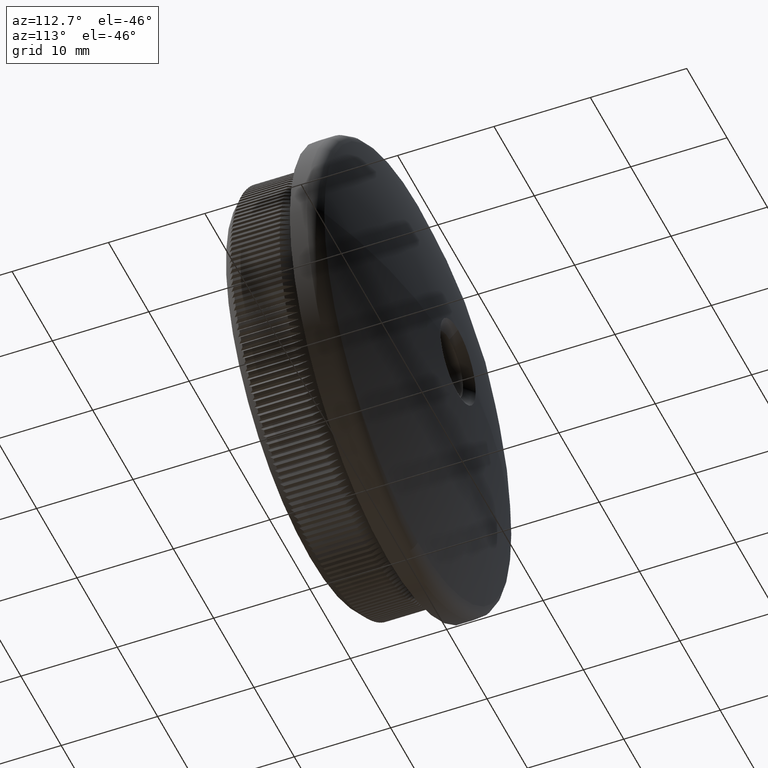
[diagram: clean part render]
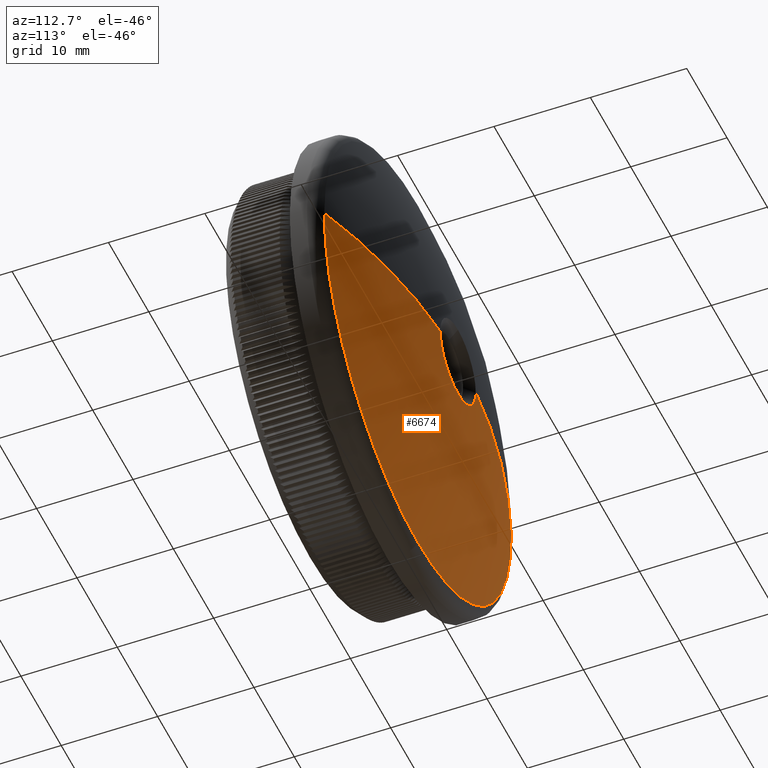
[diagram: same view with one face highlighted and labeled with its STEP entity id]
A machine part, auxiliary view. The second image highlights one B-rep face of the part: STEP entity #6674.
In plain terms, the highlighted spherical surface has radius 64.3949 mm.
Its self-contained STEP definition (entity closure, byte-faithful):
#907 = ORIENTED_EDGE ( 'NONE', *, *, #3846, .T. ) ;
#1370 = VERTEX_POINT ( 'NONE', #22908 ) ;
#1979 = CIRCLE ( 'NONE', #30591, 23.19018648117216600 ) ;
#2554 = CARTESIAN_POINT ( 'NONE',  ( 23.19018648117216600, 11.17937736945556400, 0.0000000000000000000 ) ) ;
#2848 = VERTEX_POINT ( 'NONE', #4248 ) ;
#2951 = CIRCLE ( 'NONE', #10354, 23.19018648117216600 ) ;
#2982 = AXIS2_PLACEMENT_3D ( 'NONE', #12285, #29733, #17414 ) ;
#3347 = EDGE_CURVE ( 'NONE', #9714, #31214, #1979, .T. ) ;
#3399 = EDGE_CURVE ( 'NONE', #2848, #23009, #21838, .T. ) ;
#3846 = EDGE_CURVE ( 'NONE', #17264, #1370, #25765, .T. ) ;
#4115 = ORIENTED_EDGE ( 'NONE', *, *, #3347, .T. ) ;
#4232 = DIRECTION ( 'NONE',  ( -0.0000000000000000000, -1.000000000000000000, -0.0000000000000000000 ) ) ;
#4248 = CARTESIAN_POINT ( 'NONE',  ( -4.390565330205774300, 15.35014724972939800, 1.688833971194079000E-015 ) ) ;
#4332 = CARTESIAN_POINT ( 'NONE',  ( 0.0000000000000000000, 11.17937736945556700, 0.0000000000000000000 ) ) ;
#6634 = CARTESIAN_POINT ( 'NONE',  ( 0.0000000000000000000, -48.89494680851073800, 0.0000000000000000000 ) ) ;
#6674 = ADVANCED_FACE ( 'NONE', ( #7442 ), #14197, .T. ) ;
#7064 = CIRCLE ( 'NONE', #2982, 64.39494680851073800 ) ;
#7442 = FACE_OUTER_BOUND ( 'NONE', #8110, .T. ) ;
#8110 = EDGE_LOOP ( 'NONE', ( #19576, #31428, #907, #31622, #4115, #30830 ) ) ;
#9223 = DIRECTION ( 'NONE',  ( 1.000000000000000000, 0.0000000000000000000, -1.224646799147353200E-016 ) ) ;
#9323 = DIRECTION ( 'NONE',  ( -0.0000000000000000000, -1.000000000000000000, -0.0000000000000000000 ) ) ;
#9473 = CARTESIAN_POINT ( 'NONE',  ( 0.0000000000000000000, 15.35014724972939800, 0.0000000000000000000 ) ) ;
#9714 = VERTEX_POINT ( 'NONE', #2554 ) ;
#9873 = EDGE_CURVE ( 'NONE', #31214, #23009, #2951, .T. ) ;
#10354 = AXIS2_PLACEMENT_3D ( 'NONE', #28256, #20675, #18121 ) ;
#12019 = DIRECTION ( 'NONE',  ( 0.0000000000000000000, 1.000000000000000000, 0.0000000000000000000 ) ) ;
#12285 = CARTESIAN_POINT ( 'NONE',  ( 0.0000000000000000000, -48.89494680851073800, 0.0000000000000000000 ) ) ;
#14197 = SPHERICAL_SURFACE ( 'NONE', #20321, 64.39494680851073800 ) ;
#14487 = DIRECTION ( 'NONE',  ( 0.0000000000000000000, 0.0000000000000000000, -1.000000000000000000 ) ) ;
#14699 = DIRECTION ( 'NONE',  ( 0.0000000000000000000, 0.0000000000000000000, -1.000000000000000000 ) ) ;
#17264 = VERTEX_POINT ( 'NONE', #27696 ) ;
#17414 = DIRECTION ( 'NONE',  ( -1.000000000000000000, 0.0000000000000000000, 0.0000000000000000000 ) ) ;
#18054 = EDGE_CURVE ( 'NONE', #1370, #9714, #7064, .T. ) ;
#18121 = DIRECTION ( 'NONE',  ( 0.0000000000000000000, 0.0000000000000000000, -1.000000000000000000 ) ) ;
#19575 = CARTESIAN_POINT ( 'NONE',  ( -23.19018648117216600, 11.17937736945556400, 2.839978764579771300E-015 ) ) ;
#19576 = ORIENTED_EDGE ( 'NONE', *, *, #3399, .F. ) ;
#19662 = CIRCLE ( 'NONE', #31173, 4.390565330205774300 ) ;
#20321 = AXIS2_PLACEMENT_3D ( 'NONE', #26513, #28954, #21253 ) ;
#20675 = DIRECTION ( 'NONE',  ( 0.0000000000000000000, 1.000000000000000000, 0.0000000000000000000 ) ) ;
#21253 = DIRECTION ( 'NONE',  ( 1.000000000000000000, 0.0000000000000000000, 0.0000000000000000000 ) ) ;
#21838 = CIRCLE ( 'NONE', #24884, 64.39494680851073800 ) ;
#22196 = CARTESIAN_POINT ( 'NONE',  ( 0.0000000000000000000, 11.17937736945556700, -23.19018648117216600 ) ) ;
#22791 = AXIS2_PLACEMENT_3D ( 'NONE', #9473, #4232, #14487 ) ;
#22908 = CARTESIAN_POINT ( 'NONE',  ( 4.390565330205774300, 15.35014724972939800, 0.0000000000000000000 ) ) ;
#23009 = VERTEX_POINT ( 'NONE', #19575 ) ;
#24408 = DIRECTION ( 'NONE',  ( 1.224646799147353200E-016, -0.0000000000000000000, 1.000000000000000000 ) ) ;
#24884 = AXIS2_PLACEMENT_3D ( 'NONE', #6634, #24408, #9223 ) ;
#25765 = CIRCLE ( 'NONE', #22791, 4.390565330205774300 ) ;
#26513 = CARTESIAN_POINT ( 'NONE',  ( 0.0000000000000000000, -48.89494680851073800, 0.0000000000000000000 ) ) ;
#27362 = CARTESIAN_POINT ( 'NONE',  ( 0.0000000000000000000, 15.35014724972939800, 0.0000000000000000000 ) ) ;
#27472 = DIRECTION ( 'NONE',  ( 0.0000000000000000000, 0.0000000000000000000, -1.000000000000000000 ) ) ;
#27696 = CARTESIAN_POINT ( 'NONE',  ( 5.376891778083837900E-016, 15.35014724972939800, -4.390565330205769900 ) ) ;
#28256 = CARTESIAN_POINT ( 'NONE',  ( 0.0000000000000000000, 11.17937736945556700, 0.0000000000000000000 ) ) ;
#28954 = DIRECTION ( 'NONE',  ( 0.0000000000000000000, 0.0000000000000000000, 1.000000000000000000 ) ) ;
#29733 = DIRECTION ( 'NONE',  ( 0.0000000000000000000, 0.0000000000000000000, -1.000000000000000000 ) ) ;
#30353 = EDGE_CURVE ( 'NONE', #2848, #17264, #19662, .T. ) ;
#30591 = AXIS2_PLACEMENT_3D ( 'NONE', #4332, #12019, #14699 ) ;
#30830 = ORIENTED_EDGE ( 'NONE', *, *, #9873, .T. ) ;
#31173 = AXIS2_PLACEMENT_3D ( 'NONE', #27362, #9323, #27472 ) ;
#31214 = VERTEX_POINT ( 'NONE', #22196 ) ;
#31428 = ORIENTED_EDGE ( 'NONE', *, *, #30353, .T. ) ;
#31622 = ORIENTED_EDGE ( 'NONE', *, *, #18054, .T. ) ;